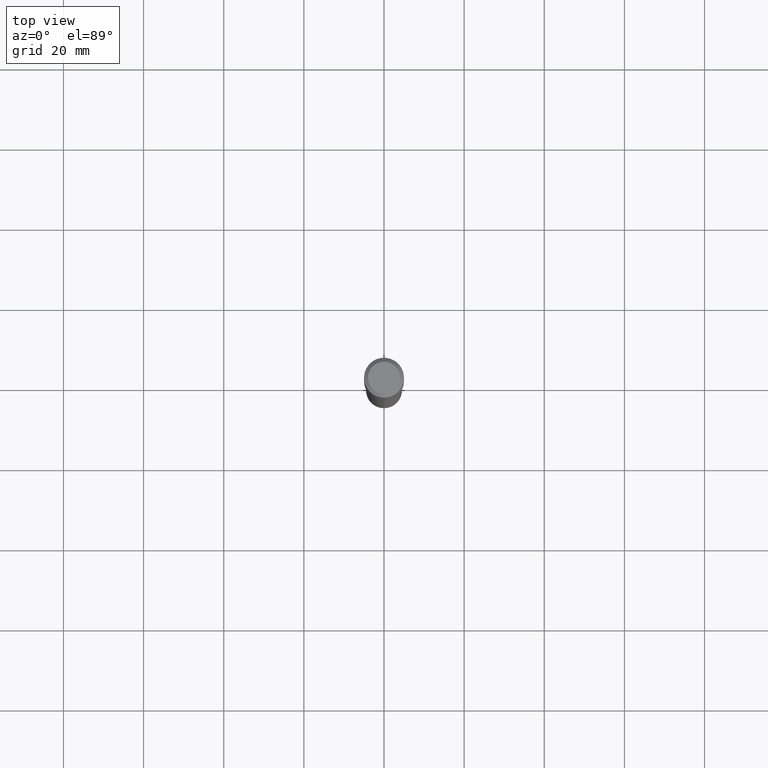
[diagram: clean part render]
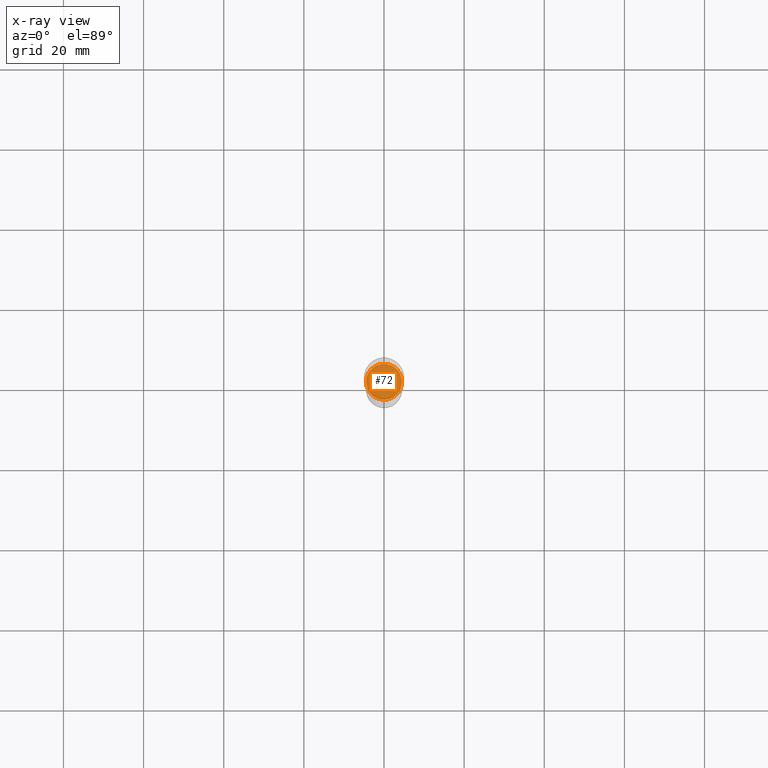
[diagram: x-ray — body ghosted, one internal face saturated and labeled with its STEP entity id]
A machine part, top view, then the same camera in x-ray: the body is ghosted and one INTERNAL B-rep face — a face not visible from any outside direction — is saturated and labeled: STEP entity #72.
In plain terms, the highlighted planar face has unit normal (-0, 0, 1).
Its self-contained STEP definition (entity closure, byte-faithful):
#6 = EDGE_CURVE ( 'NONE', #230, #444, #480, .T. ) ;
#44 = EDGE_LOOP ( 'NONE', ( #207, #204 ) ) ;
#50 = CARTESIAN_POINT ( 'NONE',  ( 0.1766500000000000015, -9.548154017334344750E-15, -2.381399999999999739 ) ) ;
#63 = DIRECTION ( 'NONE',  ( -2.445468806185136597E-29, 3.491481338843145583E-15, 1.000000000000000000 ) ) ;
#72 = ADVANCED_FACE ( 'NONE', ( #79 ), #222, .F. ) ;
#79 = FACE_OUTER_BOUND ( 'NONE', #44, .T. ) ;
#185 = DIRECTION ( 'NONE',  ( -2.438088387897960049E-29, 3.491481338843145188E-15, 1.000000000000000000 ) ) ;
#204 = ORIENTED_EDGE ( 'NONE', *, *, #285, .F. ) ;
#207 = ORIENTED_EDGE ( 'NONE', *, *, #6, .F. ) ;
#222 = PLANE ( 'NONE',  #398 ) ;
#223 = AXIS2_PLACEMENT_3D ( 'NONE', #403, #474, #484 ) ;
#230 = VERTEX_POINT ( 'NONE', #50 ) ;
#248 = CARTESIAN_POINT ( 'NONE',  ( 5.823639415049284810E-29, -8.314613660321066941E-15, -2.381399999999999739 ) ) ;
#250 = CARTESIAN_POINT ( 'NONE',  ( -0.1766500000000000015, -7.056790690426738949E-15, -2.381399999999999739 ) ) ;
#285 = EDGE_CURVE ( 'NONE', #444, #230, #488, .T. ) ;
#320 = AXIS2_PLACEMENT_3D ( 'NONE', #248, #63, #321 ) ;
#321 = DIRECTION ( 'NONE',  ( 1.000000000000000000, -6.982962677686264344E-15, 0.000000000000000000 ) ) ;
#349 = DIRECTION ( 'NONE',  ( 1.000000000000000000, -6.982962677686265922E-15, 4.876176775795935793E-29 ) ) ;
#374 = CARTESIAN_POINT ( 'NONE',  ( 5.823639415049284810E-29, -8.314613660321066941E-15, -2.381399999999999739 ) ) ;
#398 = AXIS2_PLACEMENT_3D ( 'NONE', #374, #185, #349 ) ;
#403 = CARTESIAN_POINT ( 'NONE',  ( 5.823639415049284810E-29, -8.314613660321066941E-15, -2.381399999999999739 ) ) ;
#444 = VERTEX_POINT ( 'NONE', #250 ) ;
#474 = DIRECTION ( 'NONE',  ( -2.445468806185136597E-29, 3.491481338843145583E-15, 1.000000000000000000 ) ) ;
#480 = CIRCLE ( 'NONE', #320, 0.1766500000000000015 ) ;
#484 = DIRECTION ( 'NONE',  ( 1.000000000000000000, -6.982962677686264344E-15, 0.000000000000000000 ) ) ;
#488 = CIRCLE ( 'NONE', #223, 0.1766500000000000015 ) ;